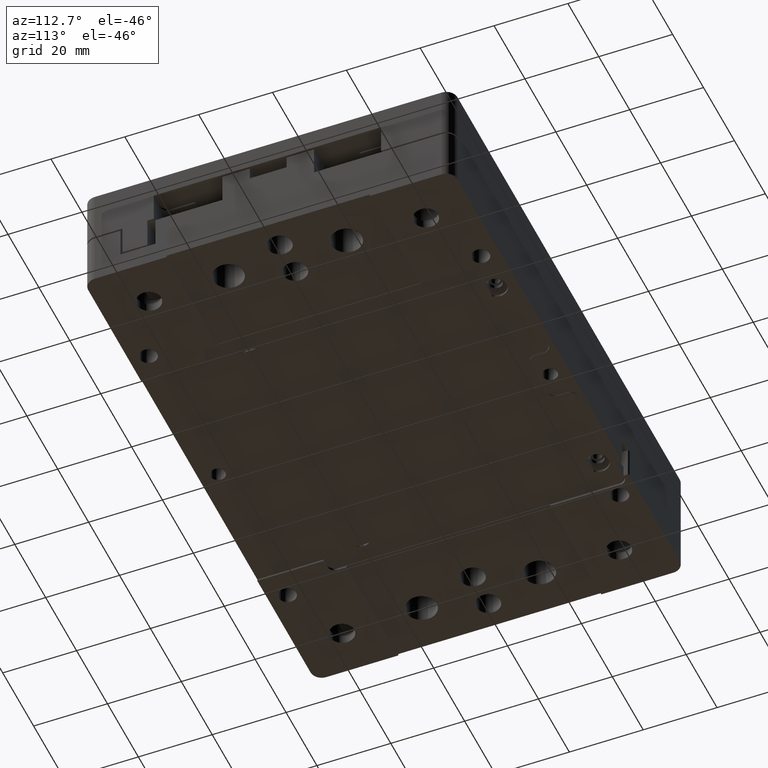
[diagram: clean part render]
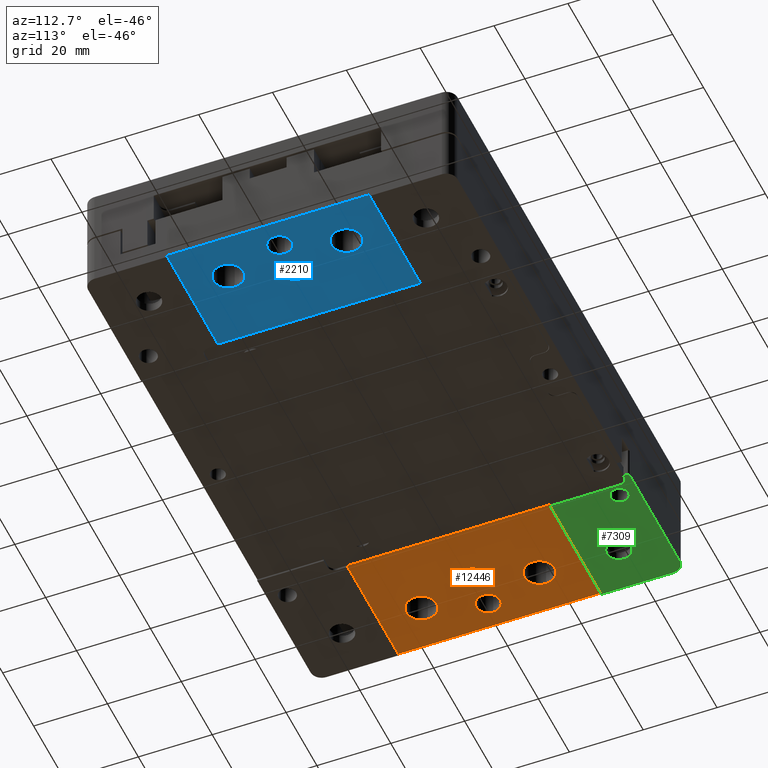
[diagram: same view with three faces highlighted in distinct colors, each labeled with its STEP entity id]
A machine part, auxiliary view with three faces highlighted in distinct colors.
Their STEP definitions:

[orange] entity #12446 — the highlighted planar face has unit normal (0, 0, -1).
#120 = EDGE_CURVE ( 'NONE', #10942, #6296, #10460, .T. ) ;
#360 = EDGE_CURVE ( 'NONE', #12393, #5605, #18288, .T. ) ;
#362 = FACE_OUTER_BOUND ( 'NONE', #21444, .T. ) ;
#469 = FACE_BOUND ( 'NONE', #13285, .T. ) ;
#567 = VECTOR ( 'NONE', #21413, 1000.000000000000000 ) ;
#630 = CIRCLE ( 'NONE', #7889, 4.125000000000003553 ) ;
#858 = CARTESIAN_POINT ( 'NONE',  ( -62.50000000000000000, -16.00000000000000000, -14.00000000000000000 ) ) ;
#1064 = AXIS2_PLACEMENT_3D ( 'NONE', #21304, #16527, #21642 ) ;
#1472 = CARTESIAN_POINT ( 'NONE',  ( -41.75000000000000000, -22.80000000000000071, -14.00000000000000000 ) ) ;
#1527 = DIRECTION ( 'NONE',  ( 0.000000000000000000, 0.000000000000000000, -1.000000000000000000 ) ) ;
#1658 = CARTESIAN_POINT ( 'NONE',  ( -42.50000000000000000, 27.50000000000000000, -14.00000000000000000 ) ) ;
#1834 = DIRECTION ( 'NONE',  ( 1.000000000000000000, 0.000000000000000000, 0.000000000000000000 ) ) ;
#1953 = PLANE ( 'NONE',  #18838 ) ;
#2866 = AXIS2_PLACEMENT_3D ( 'NONE', #13764, #2986, #15115 ) ;
#2986 = DIRECTION ( 'NONE',  ( -0.000000000000000000, -0.000000000000000000, 1.000000000000000000 ) ) ;
#3341 = DIRECTION ( 'NONE',  ( -0.000000000000000000, 1.000000000000000000, 0.000000000000000000 ) ) ;
#4047 = ORIENTED_EDGE ( 'NONE', *, *, #120, .T. ) ;
#4145 = CIRCLE ( 'NONE', #5976, 4.999999999999997335 ) ;
#4149 = CARTESIAN_POINT ( 'NONE',  ( -42.50000000000000000, -27.50000000000000000, -14.00000000000000000 ) ) ;
#5037 = CARTESIAN_POINT ( 'NONE',  ( -75.00000000000000000, 0.000000000000000000, -14.00000000000000000 ) ) ;
#5179 = DIRECTION ( 'NONE',  ( -1.000000000000000000, 0.000000000000000000, 0.000000000000000000 ) ) ;
#5185 = EDGE_CURVE ( 'NONE', #12393, #6296, #12026, .T. ) ;
#5315 = VERTEX_POINT ( 'NONE', #18656 ) ;
#5429 = CIRCLE ( 'NONE', #2866, 3.250000000000002665 ) ;
#5485 = CARTESIAN_POINT ( 'NONE',  ( 0.000000000000000000, 0.000000000000000000, -14.00000000000000000 ) ) ;
#5493 = VECTOR ( 'NONE', #3341, 1000.000000000000000 ) ;
#5605 = VERTEX_POINT ( 'NONE', #9753 ) ;
#5948 = DIRECTION ( 'NONE',  ( 0.000000000000000000, 0.000000000000000000, -1.000000000000000000 ) ) ;
#5976 = AXIS2_PLACEMENT_3D ( 'NONE', #18795, #1527, #15024 ) ;
#6085 = LINE ( 'NONE', #4149, #567 ) ;
#6296 = VERTEX_POINT ( 'NONE', #1658 ) ;
#7288 = DIRECTION ( 'NONE',  ( 0.000000000000000000, 0.000000000000000000, -1.000000000000000000 ) ) ;
#7685 = EDGE_CURVE ( 'NONE', #13644, #5315, #6085, .T. ) ;
#7889 = AXIS2_PLACEMENT_3D ( 'NONE', #858, #20503, #13218 ) ;
#7897 = ORIENTED_EDGE ( 'NONE', *, *, #7685, .T. ) ;
#8439 = EDGE_CURVE ( 'NONE', #12321, #12321, #630, .T. ) ;
#8875 = DIRECTION ( 'NONE',  ( -1.000000000000000000, 0.000000000000000000, -0.000000000000000000 ) ) ;
#9302 = ORIENTED_EDGE ( 'NONE', *, *, #19855, .F. ) ;
#9654 = EDGE_CURVE ( 'NONE', #18943, #18943, #16660, .T. ) ;
#9753 = CARTESIAN_POINT ( 'NONE',  ( -41.75000000000000000, -27.55657001667935191, -14.00000000000000000 ) ) ;
#9818 = CARTESIAN_POINT ( 'NONE',  ( -70.75000000000001421, 0.000000000000000000, -14.00000000000000000 ) ) ;
#9876 = ORIENTED_EDGE ( 'NONE', *, *, #9654, .T. ) ;
#10207 = ORIENTED_EDGE ( 'NONE', *, *, #15028, .T. ) ;
#10271 = VERTEX_POINT ( 'NONE', #10378 ) ;
#10378 = CARTESIAN_POINT ( 'NONE',  ( -66.62500000000000000, 16.00000000000000000, -14.00000000000000000 ) ) ;
#10460 = LINE ( 'NONE', #20698, #11452 ) ;
#10586 = FACE_BOUND ( 'NONE', #14770, .T. ) ;
#10942 = VERTEX_POINT ( 'NONE', #18045 ) ;
#11452 = VECTOR ( 'NONE', #1834, 1000.000000000000000 ) ;
#11618 = CIRCLE ( 'NONE', #16335, 4.125000000000003553 ) ;
#12026 = CIRCLE ( 'NONE', #14909, 4.999999999999997335 ) ;
#12068 = CARTESIAN_POINT ( 'NONE',  ( -42.50000000000000000, -27.50000000000000000, -14.00000000000000000 ) ) ;
#12301 = EDGE_CURVE ( 'NONE', #18232, #18232, #5429, .T. ) ;
#12321 = VERTEX_POINT ( 'NONE', #20748 ) ;
#12393 = VERTEX_POINT ( 'NONE', #15804 ) ;
#12446 = ADVANCED_FACE ( 'NONE', ( #10586, #469, #12601, #19441, #362 ), #1953, .T. ) ;
#12601 = FACE_BOUND ( 'NONE', #18983, .T. ) ;
#13218 = DIRECTION ( 'NONE',  ( -1.000000000000000000, 0.000000000000000000, 0.000000000000000000 ) ) ;
#13285 = EDGE_LOOP ( 'NONE', ( #9876 ) ) ;
#13288 = DIRECTION ( 'NONE',  ( -1.000000000000000000, 0.000000000000000000, 0.000000000000000000 ) ) ;
#13644 = VERTEX_POINT ( 'NONE', #12068 ) ;
#13764 = CARTESIAN_POINT ( 'NONE',  ( -67.50000000000000000, 0.000000000000000000, -14.00000000000000000 ) ) ;
#13770 = LINE ( 'NONE', #5037, #5493 ) ;
#14546 = EDGE_LOOP ( 'NONE', ( #16515 ) ) ;
#14770 = EDGE_LOOP ( 'NONE', ( #10207 ) ) ;
#14909 = AXIS2_PLACEMENT_3D ( 'NONE', #18543, #5948, #13288 ) ;
#15024 = DIRECTION ( 'NONE',  ( -1.000000000000000000, 0.000000000000000000, 0.000000000000000000 ) ) ;
#15028 = EDGE_CURVE ( 'NONE', #10271, #10271, #11618, .T. ) ;
#15115 = DIRECTION ( 'NONE',  ( -1.000000000000000000, 0.000000000000000000, 0.000000000000000000 ) ) ;
#15379 = EDGE_CURVE ( 'NONE', #5315, #10942, #13770, .T. ) ;
#15800 = ORIENTED_EDGE ( 'NONE', *, *, #12301, .T. ) ;
#15804 = CARTESIAN_POINT ( 'NONE',  ( -41.75000000000000000, 27.55657001667935191, -14.00000000000000000 ) ) ;
#16335 = AXIS2_PLACEMENT_3D ( 'NONE', #17544, #19145, #5179 ) ;
#16515 = ORIENTED_EDGE ( 'NONE', *, *, #8439, .T. ) ;
#16527 = DIRECTION ( 'NONE',  ( -0.000000000000000000, -0.000000000000000000, 1.000000000000000000 ) ) ;
#16574 = VECTOR ( 'NONE', #16804, 1000.000000000000000 ) ;
#16660 = CIRCLE ( 'NONE', #1064, 3.250000000000002665 ) ;
#16804 = DIRECTION ( 'NONE',  ( -0.000000000000000000, -1.000000000000000000, 0.000000000000000000 ) ) ;
#16851 = ORIENTED_EDGE ( 'NONE', *, *, #360, .T. ) ;
#17544 = CARTESIAN_POINT ( 'NONE',  ( -62.50000000000000000, 16.00000000000000000, -14.00000000000000000 ) ) ;
#18045 = CARTESIAN_POINT ( 'NONE',  ( -75.00000000000000000, 27.50000000000000000, -14.00000000000000000 ) ) ;
#18174 = ORIENTED_EDGE ( 'NONE', *, *, #5185, .F. ) ;
#18232 = VERTEX_POINT ( 'NONE', #9818 ) ;
#18288 = LINE ( 'NONE', #1472, #16574 ) ;
#18543 = CARTESIAN_POINT ( 'NONE',  ( -42.50000000000000000, 32.50000000000000000, -14.00000000000000000 ) ) ;
#18656 = CARTESIAN_POINT ( 'NONE',  ( -75.00000000000000000, -27.50000000000000000, -14.00000000000000000 ) ) ;
#18795 = CARTESIAN_POINT ( 'NONE',  ( -42.50000000000000000, -32.50000000000000000, -14.00000000000000000 ) ) ;
#18838 = AXIS2_PLACEMENT_3D ( 'NONE', #5485, #7288, #8875 ) ;
#18943 = VERTEX_POINT ( 'NONE', #22323 ) ;
#18983 = EDGE_LOOP ( 'NONE', ( #15800 ) ) ;
#19145 = DIRECTION ( 'NONE',  ( -0.000000000000000000, -0.000000000000000000, 1.000000000000000000 ) ) ;
#19441 = FACE_BOUND ( 'NONE', #14546, .T. ) ;
#19814 = ORIENTED_EDGE ( 'NONE', *, *, #15379, .T. ) ;
#19855 = EDGE_CURVE ( 'NONE', #13644, #5605, #4145, .T. ) ;
#20503 = DIRECTION ( 'NONE',  ( -0.000000000000000000, -0.000000000000000000, 1.000000000000000000 ) ) ;
#20698 = CARTESIAN_POINT ( 'NONE',  ( -80.00000000000000000, 27.50000000000000000, -14.00000000000000000 ) ) ;
#20748 = CARTESIAN_POINT ( 'NONE',  ( -66.62500000000000000, -16.00000000000000000, -14.00000000000000000 ) ) ;
#21304 = CARTESIAN_POINT ( 'NONE',  ( -57.50000000000000000, 0.000000000000000000, -14.00000000000000000 ) ) ;
#21413 = DIRECTION ( 'NONE',  ( -1.000000000000000000, -0.000000000000000000, -0.000000000000000000 ) ) ;
#21444 = EDGE_LOOP ( 'NONE', ( #18174, #16851, #9302, #7897, #19814, #4047 ) ) ;
#21642 = DIRECTION ( 'NONE',  ( -1.000000000000000000, 0.000000000000000000, 0.000000000000000000 ) ) ;
#22323 = CARTESIAN_POINT ( 'NONE',  ( -60.75000000000000711, 0.000000000000000000, -14.00000000000000000 ) ) ;

[blue] entity #2210 — the highlighted planar face has unit normal (0, 0, -1).
#9 = VECTOR ( 'NONE', #5208, 1000.000000000000000 ) ;
#291 = DIRECTION ( 'NONE',  ( 0.000000000000000000, 0.000000000000000000, -1.000000000000000000 ) ) ;
#472 = EDGE_CURVE ( 'NONE', #15658, #15658, #11853, .T. ) ;
#803 = ORIENTED_EDGE ( 'NONE', *, *, #11219, .T. ) ;
#1217 = EDGE_CURVE ( 'NONE', #13181, #20546, #12740, .T. ) ;
#1591 = EDGE_LOOP ( 'NONE', ( #2971 ) ) ;
#1645 = DIRECTION ( 'NONE',  ( -1.000000000000000000, 0.000000000000000000, 0.000000000000000000 ) ) ;
#1723 = ORIENTED_EDGE ( 'NONE', *, *, #9854, .T. ) ;
#1896 = CARTESIAN_POINT ( 'NONE',  ( 62.50000000000000000, -16.00000000000000000, -14.00000000000000000 ) ) ;
#2210 = ADVANCED_FACE ( 'NONE', ( #8484, #15514, #12001, #20633, #10299 ), #8918, .T. ) ;
#2410 = DIRECTION ( 'NONE',  ( -0.000000000000000000, 1.000000000000000000, 0.000000000000000000 ) ) ;
#2836 = EDGE_CURVE ( 'NONE', #9172, #9172, #13791, .T. ) ;
#2971 = ORIENTED_EDGE ( 'NONE', *, *, #472, .T. ) ;
#2989 = DIRECTION ( 'NONE',  ( -1.000000000000000000, 0.000000000000000000, 0.000000000000000000 ) ) ;
#3459 = LINE ( 'NONE', #17633, #19158 ) ;
#4003 = AXIS2_PLACEMENT_3D ( 'NONE', #18184, #6144, #16241 ) ;
#4083 = VERTEX_POINT ( 'NONE', #15339 ) ;
#4143 = LINE ( 'NONE', #14683, #13889 ) ;
#4370 = DIRECTION ( 'NONE',  ( -0.000000000000000000, 1.000000000000000000, 0.000000000000000000 ) ) ;
#4592 = VERTEX_POINT ( 'NONE', #11630 ) ;
#4649 = DIRECTION ( 'NONE',  ( -1.000000000000000000, 0.000000000000000000, 0.000000000000000000 ) ) ;
#4777 = CIRCLE ( 'NONE', #5509, 4.999999999999997335 ) ;
#4985 = CARTESIAN_POINT ( 'NONE',  ( 42.50000000000000000, 32.50000000000000000, -14.00000000000000000 ) ) ;
#5135 = VERTEX_POINT ( 'NONE', #7186 ) ;
#5142 = CARTESIAN_POINT ( 'NONE',  ( 42.50000000000000000, -27.50000000000000000, -14.00000000000000000 ) ) ;
#5208 = DIRECTION ( 'NONE',  ( 1.000000000000000000, 0.000000000000000000, 0.000000000000000000 ) ) ;
#5447 = CARTESIAN_POINT ( 'NONE',  ( 64.25000000000000000, 0.000000000000000000, -14.00000000000000000 ) ) ;
#5509 = AXIS2_PLACEMENT_3D ( 'NONE', #4985, #20536, #17014 ) ;
#5775 = EDGE_CURVE ( 'NONE', #13181, #22059, #20390, .T. ) ;
#6144 = DIRECTION ( 'NONE',  ( -0.000000000000000000, -0.000000000000000000, 1.000000000000000000 ) ) ;
#7186 = CARTESIAN_POINT ( 'NONE',  ( 42.50000000000000000, 27.50000000000000000, -14.00000000000000000 ) ) ;
#7218 = DIRECTION ( 'NONE',  ( -1.000000000000000000, 0.000000000000000000, -0.000000000000000000 ) ) ;
#7315 = DIRECTION ( 'NONE',  ( -0.000000000000000000, -0.000000000000000000, 1.000000000000000000 ) ) ;
#7730 = CARTESIAN_POINT ( 'NONE',  ( 75.00000000000000000, 27.50000000000000000, -14.00000000000000000 ) ) ;
#8156 = ORIENTED_EDGE ( 'NONE', *, *, #5775, .F. ) ;
#8239 = EDGE_LOOP ( 'NONE', ( #8156, #17863, #16273, #803, #13557, #10046 ) ) ;
#8378 = CARTESIAN_POINT ( 'NONE',  ( 41.75000000000000000, -27.55657001667935191, -14.00000000000000000 ) ) ;
#8484 = FACE_BOUND ( 'NONE', #12562, .T. ) ;
#8918 = PLANE ( 'NONE',  #17403 ) ;
#9172 = VERTEX_POINT ( 'NONE', #16100 ) ;
#9750 = VECTOR ( 'NONE', #2410, 1000.000000000000000 ) ;
#9854 = EDGE_CURVE ( 'NONE', #10398, #10398, #11560, .T. ) ;
#10046 = ORIENTED_EDGE ( 'NONE', *, *, #11739, .T. ) ;
#10080 = CARTESIAN_POINT ( 'NONE',  ( 42.50000000000000000, 27.50000000000000000, -14.00000000000000000 ) ) ;
#10299 = FACE_OUTER_BOUND ( 'NONE', #8239, .T. ) ;
#10398 = VERTEX_POINT ( 'NONE', #16292 ) ;
#11219 = EDGE_CURVE ( 'NONE', #5135, #12576, #11890, .T. ) ;
#11560 = CIRCLE ( 'NONE', #11943, 4.125000000000003553 ) ;
#11630 = CARTESIAN_POINT ( 'NONE',  ( 58.37499999999999289, -16.00000000000000000, -14.00000000000000000 ) ) ;
#11683 = CARTESIAN_POINT ( 'NONE',  ( 42.50000000000000000, -32.50000000000000000, -14.00000000000000000 ) ) ;
#11739 = EDGE_CURVE ( 'NONE', #4083, #22059, #3459, .T. ) ;
#11754 = ORIENTED_EDGE ( 'NONE', *, *, #13332, .T. ) ;
#11853 = CIRCLE ( 'NONE', #16204, 3.250000000000002665 ) ;
#11890 = LINE ( 'NONE', #10080, #9 ) ;
#11943 = AXIS2_PLACEMENT_3D ( 'NONE', #20948, #7315, #1645 ) ;
#12001 = FACE_BOUND ( 'NONE', #17329, .T. ) ;
#12264 = AXIS2_PLACEMENT_3D ( 'NONE', #1896, #14476, #2989 ) ;
#12562 = EDGE_LOOP ( 'NONE', ( #11754 ) ) ;
#12576 = VERTEX_POINT ( 'NONE', #7730 ) ;
#12740 = LINE ( 'NONE', #17977, #9750 ) ;
#13068 = ORIENTED_EDGE ( 'NONE', *, *, #2836, .T. ) ;
#13181 = VERTEX_POINT ( 'NONE', #8378 ) ;
#13332 = EDGE_CURVE ( 'NONE', #4592, #4592, #18075, .T. ) ;
#13377 = DIRECTION ( 'NONE',  ( 0.000000000000000000, 0.000000000000000000, -1.000000000000000000 ) ) ;
#13557 = ORIENTED_EDGE ( 'NONE', *, *, #18440, .F. ) ;
#13791 = CIRCLE ( 'NONE', #4003, 3.250000000000002665 ) ;
#13889 = VECTOR ( 'NONE', #4370, 1000.000000000000000 ) ;
#14024 = CARTESIAN_POINT ( 'NONE',  ( 0.000000000000000000, 0.000000000000000000, -14.00000000000000000 ) ) ;
#14476 = DIRECTION ( 'NONE',  ( -0.000000000000000000, -0.000000000000000000, 1.000000000000000000 ) ) ;
#14683 = CARTESIAN_POINT ( 'NONE',  ( 75.00000000000000000, 0.000000000000000000, -14.00000000000000000 ) ) ;
#15339 = CARTESIAN_POINT ( 'NONE',  ( 75.00000000000000000, -27.50000000000000000, -14.00000000000000000 ) ) ;
#15514 = FACE_BOUND ( 'NONE', #1591, .T. ) ;
#15658 = VERTEX_POINT ( 'NONE', #5447 ) ;
#15672 = AXIS2_PLACEMENT_3D ( 'NONE', #11683, #13377, #20324 ) ;
#15767 = EDGE_CURVE ( 'NONE', #5135, #20546, #4777, .T. ) ;
#16100 = CARTESIAN_POINT ( 'NONE',  ( 54.25000000000000000, 0.000000000000000000, -14.00000000000000000 ) ) ;
#16204 = AXIS2_PLACEMENT_3D ( 'NONE', #20214, #20328, #4649 ) ;
#16241 = DIRECTION ( 'NONE',  ( -1.000000000000000000, 0.000000000000000000, 0.000000000000000000 ) ) ;
#16273 = ORIENTED_EDGE ( 'NONE', *, *, #15767, .F. ) ;
#16292 = CARTESIAN_POINT ( 'NONE',  ( 58.37499999999999289, 16.00000000000000000, -14.00000000000000000 ) ) ;
#17014 = DIRECTION ( 'NONE',  ( -1.000000000000000000, 0.000000000000000000, 0.000000000000000000 ) ) ;
#17329 = EDGE_LOOP ( 'NONE', ( #13068 ) ) ;
#17403 = AXIS2_PLACEMENT_3D ( 'NONE', #14024, #291, #7218 ) ;
#17423 = DIRECTION ( 'NONE',  ( -1.000000000000000000, -0.000000000000000000, -0.000000000000000000 ) ) ;
#17633 = CARTESIAN_POINT ( 'NONE',  ( 80.00000000000000000, -27.50000000000000000, -14.00000000000000000 ) ) ;
#17741 = CARTESIAN_POINT ( 'NONE',  ( 41.75000000000000000, 27.55657001667935191, -14.00000000000000000 ) ) ;
#17863 = ORIENTED_EDGE ( 'NONE', *, *, #1217, .T. ) ;
#17977 = CARTESIAN_POINT ( 'NONE',  ( 41.75000000000000000, 22.00000000000000000, -14.00000000000000000 ) ) ;
#18075 = CIRCLE ( 'NONE', #12264, 4.125000000000003553 ) ;
#18184 = CARTESIAN_POINT ( 'NONE',  ( 57.50000000000000000, 0.000000000000000000, -14.00000000000000000 ) ) ;
#18440 = EDGE_CURVE ( 'NONE', #4083, #12576, #4143, .T. ) ;
#19158 = VECTOR ( 'NONE', #17423, 1000.000000000000000 ) ;
#20214 = CARTESIAN_POINT ( 'NONE',  ( 67.50000000000000000, 0.000000000000000000, -14.00000000000000000 ) ) ;
#20242 = EDGE_LOOP ( 'NONE', ( #1723 ) ) ;
#20324 = DIRECTION ( 'NONE',  ( -1.000000000000000000, 0.000000000000000000, 0.000000000000000000 ) ) ;
#20328 = DIRECTION ( 'NONE',  ( -0.000000000000000000, -0.000000000000000000, 1.000000000000000000 ) ) ;
#20390 = CIRCLE ( 'NONE', #15672, 4.999999999999997335 ) ;
#20536 = DIRECTION ( 'NONE',  ( 0.000000000000000000, 0.000000000000000000, -1.000000000000000000 ) ) ;
#20546 = VERTEX_POINT ( 'NONE', #17741 ) ;
#20633 = FACE_BOUND ( 'NONE', #20242, .T. ) ;
#20948 = CARTESIAN_POINT ( 'NONE',  ( 62.50000000000000000, 16.00000000000000000, -14.00000000000000000 ) ) ;
#22059 = VERTEX_POINT ( 'NONE', #5142 ) ;

[green] entity #7309 — the highlighted planar face has unit normal (0, 0, -1).
#31 = VECTOR ( 'NONE', #11788, 1000.000000000000000 ) ;
#128 = CARTESIAN_POINT ( 'NONE',  ( -39.75000000000000000, 48.50000000000000000, -14.50000000000000000 ) ) ;
#657 = CARTESIAN_POINT ( 'NONE',  ( -75.00000000000000000, -50.00000000000000000, -14.50000000000000000 ) ) ;
#807 = DIRECTION ( 'NONE',  ( -1.000000000000000000, 0.000000000000000000, -0.000000000000000000 ) ) ;
#904 = CARTESIAN_POINT ( 'NONE',  ( -75.00000000000000000, -50.00000000000000000, -14.50000000000000000 ) ) ;
#1174 = CARTESIAN_POINT ( 'NONE',  ( -75.00000000000001421, 47.00000000000000000, -14.49999999999999822 ) ) ;
#1181 = CARTESIAN_POINT ( 'NONE',  ( -75.00000000000000000, 27.49999999999999645, -14.50000000000000000 ) ) ;
#1280 = ORIENTED_EDGE ( 'NONE', *, *, #19483, .T. ) ;
#1526 = VERTEX_POINT ( 'NONE', #4829 ) ;
#1572 = LINE ( 'NONE', #5109, #22160 ) ;
#1621 = VECTOR ( 'NONE', #15546, 1000.000000000000000 ) ;
#1647 = CARTESIAN_POINT ( 'NONE',  ( -39.60000000000000142, 49.50000000000000000, -14.49999999999999822 ) ) ;
#1875 = DIRECTION ( 'NONE',  ( -0.000000000000000000, -0.000000000000000000, 1.000000000000000000 ) ) ;
#2081 = EDGE_LOOP ( 'NONE', ( #15808, #19686, #5167, #15861, #1280, #5003, #12509, #18479, #12127, #20930 ) ) ;
#2182 = CIRCLE ( 'NONE', #17420, 3.000000000000002665 ) ;
#2585 = CARTESIAN_POINT ( 'NONE',  ( -72.00000000000001421, 50.00000000000000000, -14.49999999999999822 ) ) ;
#2616 = CIRCLE ( 'NONE', #18971, 2.399999999999999467 ) ;
#2622 = EDGE_CURVE ( 'NONE', #3320, #20249, #2182, .T. ) ;
#2720 = LINE ( 'NONE', #904, #16825 ) ;
#2830 = DIRECTION ( 'NONE',  ( -0.000000000000000000, -0.000000000000000000, 1.000000000000000000 ) ) ;
#2837 = CARTESIAN_POINT ( 'NONE',  ( -75.00000000000000000, 27.49999999999999645, -14.50000000000000000 ) ) ;
#2941 = CARTESIAN_POINT ( 'NONE',  ( -75.00000000000000000, 50.00000000000000000, -14.50000000000000000 ) ) ;
#2959 = VECTOR ( 'NONE', #10679, 1000.000000000000000 ) ;
#3062 = CARTESIAN_POINT ( 'NONE',  ( -39.60000000000000142, 50.00000000000000000, -14.49999999999999822 ) ) ;
#3128 = EDGE_CURVE ( 'NONE', #15953, #12700, #16277, .T. ) ;
#3320 = VERTEX_POINT ( 'NONE', #2585 ) ;
#3681 = EDGE_LOOP ( 'NONE', ( #10349 ) ) ;
#4040 = ORIENTED_EDGE ( 'NONE', *, *, #18221, .T. ) ;
#4448 = EDGE_LOOP ( 'NONE', ( #4040 ) ) ;
#4517 = FACE_BOUND ( 'NONE', #4448, .T. ) ;
#4607 = EDGE_CURVE ( 'NONE', #22347, #3320, #15421, .T. ) ;
#4625 = EDGE_CURVE ( 'NONE', #9237, #21963, #1572, .T. ) ;
#4829 = CARTESIAN_POINT ( 'NONE',  ( -59.20000000000000284, 37.50000000000000000, -14.50000000000000000 ) ) ;
#4845 = VERTEX_POINT ( 'NONE', #1181 ) ;
#5003 = ORIENTED_EDGE ( 'NONE', *, *, #2622, .F. ) ;
#5059 = DIRECTION ( 'NONE',  ( 1.000000000000000000, 0.000000000000000000, 0.000000000000000000 ) ) ;
#5109 = CARTESIAN_POINT ( 'NONE',  ( -39.10000000000000142, -50.00000000000000000, -14.50000000000000000 ) ) ;
#5167 = ORIENTED_EDGE ( 'NONE', *, *, #3128, .T. ) ;
#5476 = EDGE_CURVE ( 'NONE', #21963, #10124, #14406, .T. ) ;
#5545 = DIRECTION ( 'NONE',  ( 0.000000000000000000, 0.000000000000000000, 1.000000000000000000 ) ) ;
#5933 = CARTESIAN_POINT ( 'NONE',  ( -39.10000000000000142, 49.50000000000000000, -14.49999999999999822 ) ) ;
#6501 = AXIS2_PLACEMENT_3D ( 'NONE', #19308, #12245, #17374 ) ;
#6647 = DIRECTION ( 'NONE',  ( -0.000000000000000000, -0.000000000000000000, 1.000000000000000000 ) ) ;
#6667 = DIRECTION ( 'NONE',  ( 0.000000000000000000, 0.000000000000000000, 1.000000000000000000 ) ) ;
#6728 = AXIS2_PLACEMENT_3D ( 'NONE', #657, #7576, #10986 ) ;
#6864 = VECTOR ( 'NONE', #807, 1000.000000000000000 ) ;
#6884 = CARTESIAN_POINT ( 'NONE',  ( -41.75000000000000000, 46.50000000000000000, -14.50000000000000000 ) ) ;
#6944 = EDGE_CURVE ( 'NONE', #10124, #21678, #12140, .T. ) ;
#6949 = AXIS2_PLACEMENT_3D ( 'NONE', #21095, #5545, #5059 ) ;
#7058 = EDGE_CURVE ( 'NONE', #21678, #15953, #13384, .T. ) ;
#7262 = AXIS2_PLACEMENT_3D ( 'NONE', #1647, #1875, #10719 ) ;
#7309 = ADVANCED_FACE ( 'NONE', ( #13240, #4517, #20186 ), #13017, .T. ) ;
#7576 = DIRECTION ( 'NONE',  ( 0.000000000000000000, 0.000000000000000000, -1.000000000000000000 ) ) ;
#8620 = CARTESIAN_POINT ( 'NONE',  ( -41.75000000000000000, -50.00000000000000000, -14.50000000000000000 ) ) ;
#9237 = VERTEX_POINT ( 'NONE', #5933 ) ;
#9463 = CARTESIAN_POINT ( 'NONE',  ( -39.75000000000000000, 48.50000000000000000, -14.50000000000000000 ) ) ;
#9760 = DIRECTION ( 'NONE',  ( -1.000000000000000000, 0.000000000000000000, 0.000000000000000000 ) ) ;
#9874 = DIRECTION ( 'NONE',  ( 0.000000000000000000, 1.000000000000000000, 0.000000000000000000 ) ) ;
#10124 = VERTEX_POINT ( 'NONE', #9463 ) ;
#10159 = CARTESIAN_POINT ( 'NONE',  ( -41.75000000000000000, 27.55657001667935546, -14.50000000000000000 ) ) ;
#10349 = ORIENTED_EDGE ( 'NONE', *, *, #15919, .T. ) ;
#10679 = DIRECTION ( 'NONE',  ( -1.000000000000000000, -0.000000000000000000, -0.000000000000000000 ) ) ;
#10719 = DIRECTION ( 'NONE',  ( -1.000000000000000000, 0.000000000000000000, 0.000000000000000000 ) ) ;
#10986 = DIRECTION ( 'NONE',  ( -1.000000000000000000, 0.000000000000000000, -0.000000000000000000 ) ) ;
#11395 = CARTESIAN_POINT ( 'NONE',  ( -39.10000000000000142, 48.50000000000000711, -14.50000000000000000 ) ) ;
#11676 = DIRECTION ( 'NONE',  ( -0.000000000000000000, -1.000000000000000000, -0.000000000000000000 ) ) ;
#11788 = DIRECTION ( 'NONE',  ( -1.000000000000000000, -0.000000000000000000, 0.000000000000000000 ) ) ;
#12127 = ORIENTED_EDGE ( 'NONE', *, *, #4625, .T. ) ;
#12140 = CIRCLE ( 'NONE', #12850, 2.000000000000001776 ) ;
#12245 = DIRECTION ( 'NONE',  ( 0.000000000000000000, 0.000000000000000000, -1.000000000000000000 ) ) ;
#12509 = ORIENTED_EDGE ( 'NONE', *, *, #4607, .F. ) ;
#12573 = EDGE_CURVE ( 'NONE', #12700, #4845, #12720, .T. ) ;
#12700 = VERTEX_POINT ( 'NONE', #20561 ) ;
#12720 = LINE ( 'NONE', #2837, #6864 ) ;
#12850 = AXIS2_PLACEMENT_3D ( 'NONE', #21918, #2830, #9760 ) ;
#13017 = PLANE ( 'NONE',  #6728 ) ;
#13232 = DIRECTION ( 'NONE',  ( 1.000000000000000000, 0.000000000000000000, 0.000000000000000000 ) ) ;
#13240 = FACE_BOUND ( 'NONE', #3681, .T. ) ;
#13384 = LINE ( 'NONE', #8620, #1621 ) ;
#13429 = CIRCLE ( 'NONE', #7262, 0.5000000000000004441 ) ;
#14406 = LINE ( 'NONE', #128, #2959 ) ;
#14943 = EDGE_CURVE ( 'NONE', #9237, #22347, #13429, .T. ) ;
#15421 = LINE ( 'NONE', #2941, #31 ) ;
#15546 = DIRECTION ( 'NONE',  ( -0.000000000000000000, -1.000000000000000000, -0.000000000000000000 ) ) ;
#15808 = ORIENTED_EDGE ( 'NONE', *, *, #6944, .T. ) ;
#15861 = ORIENTED_EDGE ( 'NONE', *, *, #12573, .T. ) ;
#15919 = EDGE_CURVE ( 'NONE', #1526, #1526, #16728, .T. ) ;
#15953 = VERTEX_POINT ( 'NONE', #10159 ) ;
#16277 = CIRCLE ( 'NONE', #6501, 4.999999999999997335 ) ;
#16728 = CIRCLE ( 'NONE', #6949, 3.299999999999997158 ) ;
#16825 = VECTOR ( 'NONE', #9874, 1000.000000000000000 ) ;
#17374 = DIRECTION ( 'NONE',  ( -1.000000000000000000, 0.000000000000000000, 0.000000000000000000 ) ) ;
#17420 = AXIS2_PLACEMENT_3D ( 'NONE', #22197, #6647, #20499 ) ;
#17976 = CARTESIAN_POINT ( 'NONE',  ( -42.60000000000000142, 45.00000000000000000, -14.50000000000000000 ) ) ;
#18221 = EDGE_CURVE ( 'NONE', #21054, #21054, #2616, .T. ) ;
#18479 = ORIENTED_EDGE ( 'NONE', *, *, #14943, .F. ) ;
#18971 = AXIS2_PLACEMENT_3D ( 'NONE', #22098, #6667, #13232 ) ;
#19308 = CARTESIAN_POINT ( 'NONE',  ( -42.50000000000000000, 32.50000000000000000, -14.50000000000000000 ) ) ;
#19483 = EDGE_CURVE ( 'NONE', #4845, #20249, #2720, .T. ) ;
#19686 = ORIENTED_EDGE ( 'NONE', *, *, #7058, .T. ) ;
#20186 = FACE_OUTER_BOUND ( 'NONE', #2081, .T. ) ;
#20249 = VERTEX_POINT ( 'NONE', #1174 ) ;
#20499 = DIRECTION ( 'NONE',  ( -1.000000000000000000, 0.000000000000000000, 0.000000000000000000 ) ) ;
#20561 = CARTESIAN_POINT ( 'NONE',  ( -42.50000000000000000, 27.49999999999999645, -14.50000000000000000 ) ) ;
#20930 = ORIENTED_EDGE ( 'NONE', *, *, #5476, .T. ) ;
#21054 = VERTEX_POINT ( 'NONE', #17976 ) ;
#21095 = CARTESIAN_POINT ( 'NONE',  ( -62.50000000000000000, 37.50000000000000000, -14.50000000000000000 ) ) ;
#21678 = VERTEX_POINT ( 'NONE', #6884 ) ;
#21918 = CARTESIAN_POINT ( 'NONE',  ( -39.75000000000000000, 46.50000000000000000, -14.50000000000000000 ) ) ;
#21963 = VERTEX_POINT ( 'NONE', #11395 ) ;
#22098 = CARTESIAN_POINT ( 'NONE',  ( -45.00000000000000000, 45.00000000000000000, -14.50000000000000000 ) ) ;
#22160 = VECTOR ( 'NONE', #11676, 1000.000000000000000 ) ;
#22197 = CARTESIAN_POINT ( 'NONE',  ( -72.00000000000001421, 47.00000000000000000, -14.49999999999999822 ) ) ;
#22347 = VERTEX_POINT ( 'NONE', #3062 ) ;